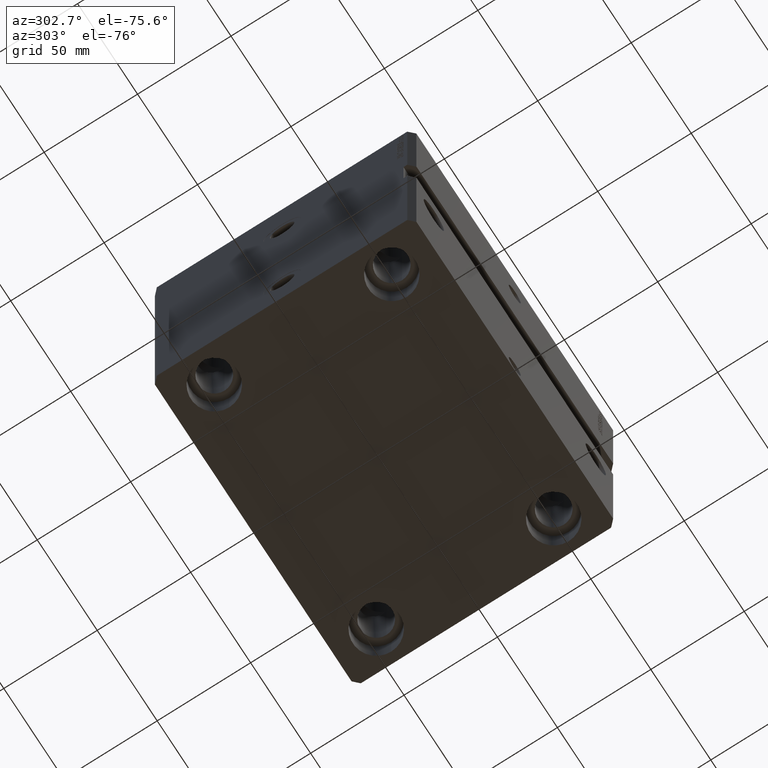
[diagram: clean part render]
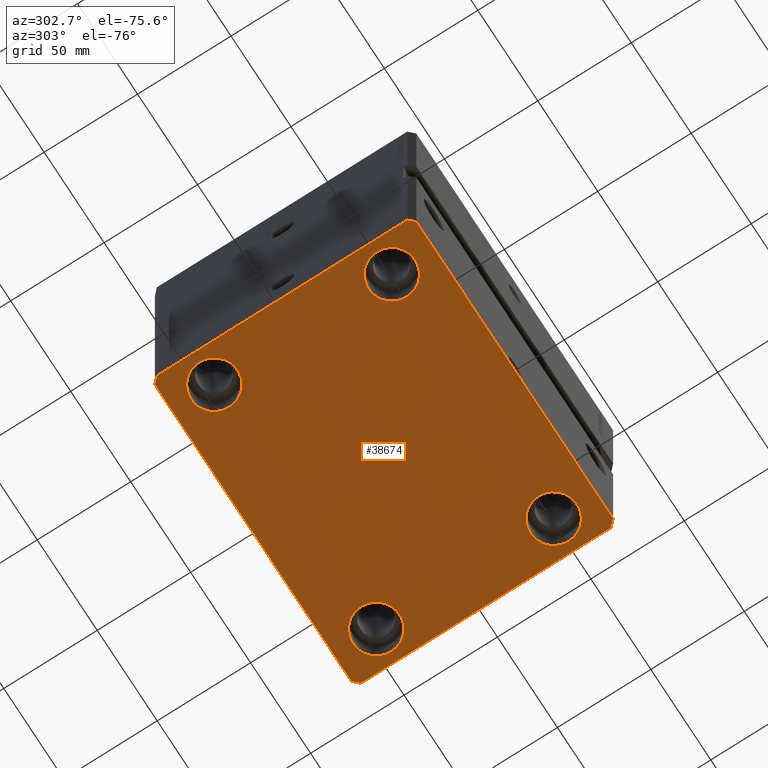
[diagram: same view with one face highlighted and labeled with its STEP entity id]
A machine part, auxiliary view. The second image highlights one B-rep face of the part: STEP entity #38674.
In plain terms, the highlighted planar face has unit normal (0, 0, 1).
Its self-contained STEP definition (entity closure, byte-faithful):
#246 = VECTOR ( 'NONE', #27806, 1000.000000000000000 ) ;
#385 = CIRCLE ( 'NONE', #35295, 12.49999999999999645 ) ;
#394 = CARTESIAN_POINT ( 'NONE',  ( -67.50000000000000000, 47.50000000000000000, -160.0000000000000000 ) ) ;
#943 = EDGE_CURVE ( 'NONE', #18308, #29926, #15015, .T. ) ;
#979 = VERTEX_POINT ( 'NONE', #38302 ) ;
#1150 = CIRCLE ( 'NONE', #8927, 12.49999999999999645 ) ;
#1205 = CARTESIAN_POINT ( 'NONE',  ( -80.00000000000000000, -47.50000000000000000, -160.0000000000000000 ) ) ;
#2194 = EDGE_LOOP ( 'NONE', ( #20334, #31273 ) ) ;
#2267 = CARTESIAN_POINT ( 'NONE',  ( -85.00000000000001421, -67.00000000000000000, -160.0000000000000000 ) ) ;
#2324 = DIRECTION ( 'NONE',  ( 1.000000000000000000, 0.000000000000000000, 0.000000000000000000 ) ) ;
#2544 = EDGE_CURVE ( 'NONE', #16374, #9183, #385, .T. ) ;
#2902 = FACE_BOUND ( 'NONE', #22493, .T. ) ;
#3362 = DIRECTION ( 'NONE',  ( 1.000000000000000000, 0.000000000000000000, -0.000000000000000000 ) ) ;
#3489 = DIRECTION ( 'NONE',  ( -0.000000000000000000, -0.000000000000000000, 1.000000000000000000 ) ) ;
#3632 = EDGE_CURVE ( 'NONE', #35018, #22713, #24463, .T. ) ;
#3652 = CIRCLE ( 'NONE', #26926, 12.49999999999999645 ) ;
#3842 = CARTESIAN_POINT ( 'NONE',  ( -82.00000000000001421, -70.00000000000000000, -160.0000000000000000 ) ) ;
#3967 = DIRECTION ( 'NONE',  ( -0.000000000000000000, -0.000000000000000000, 1.000000000000000000 ) ) ;
#4310 = AXIS2_PLACEMENT_3D ( 'NONE', #30315, #4597, #37115 ) ;
#4538 = AXIS2_PLACEMENT_3D ( 'NONE', #26287, #3489, #37200 ) ;
#4597 = DIRECTION ( 'NONE',  ( -0.000000000000000000, -0.000000000000000000, 1.000000000000000000 ) ) ;
#4905 = DIRECTION ( 'NONE',  ( -0.000000000000000000, -0.000000000000000000, 1.000000000000000000 ) ) ;
#5212 = AXIS2_PLACEMENT_3D ( 'NONE', #43899, #25217, #3362 ) ;
#5725 = VERTEX_POINT ( 'NONE', #17044 ) ;
#5949 = DIRECTION ( 'NONE',  ( -0.000000000000000000, -0.000000000000000000, 1.000000000000000000 ) ) ;
#7006 = FACE_BOUND ( 'NONE', #35686, .T. ) ;
#7360 = EDGE_LOOP ( 'NONE', ( #11812, #25662, #7840, #41425, #22714, #39188, #47073, #44970 ) ) ;
#7655 = CIRCLE ( 'NONE', #4538, 12.49999999999999645 ) ;
#7689 = LINE ( 'NONE', #26837, #18465 ) ;
#7840 = ORIENTED_EDGE ( 'NONE', *, *, #26844, .F. ) ;
#7972 = CARTESIAN_POINT ( 'NONE',  ( -85.00000000000001421, -67.00000000000000000, -160.0000000000000000 ) ) ;
#8836 = ORIENTED_EDGE ( 'NONE', *, *, #2544, .T. ) ;
#8927 = AXIS2_PLACEMENT_3D ( 'NONE', #41560, #4905, #44962 ) ;
#9092 = VERTEX_POINT ( 'NONE', #12427 ) ;
#9183 = VERTEX_POINT ( 'NONE', #20432 ) ;
#9509 = CARTESIAN_POINT ( 'NONE',  ( -55.00000000000000711, 47.50000000000000000, -160.0000000000000000 ) ) ;
#9643 = VECTOR ( 'NONE', #22781, 1000.000000000000000 ) ;
#10337 = DIRECTION ( 'NONE',  ( -0.7071067811865344721, 0.7071067811865606734, 0.000000000000000000 ) ) ;
#11073 = CARTESIAN_POINT ( 'NONE',  ( 82.00000000000059686, 70.00000000000002842, -160.0000000000000000 ) ) ;
#11125 = AXIS2_PLACEMENT_3D ( 'NONE', #38955, #5949, #26282 ) ;
#11587 = LINE ( 'NONE', #41192, #41134 ) ;
#11812 = ORIENTED_EDGE ( 'NONE', *, *, #30406, .F. ) ;
#12207 = VERTEX_POINT ( 'NONE', #14166 ) ;
#12427 = CARTESIAN_POINT ( 'NONE',  ( 55.00000000000000711, -47.50000000000000000, -160.0000000000000000 ) ) ;
#12558 = EDGE_CURVE ( 'NONE', #29926, #12207, #15057, .T. ) ;
#13010 = VECTOR ( 'NONE', #22578, 1000.000000000000000 ) ;
#13239 = CARTESIAN_POINT ( 'NONE',  ( 67.50000000000000000, 47.50000000000001421, -160.0000000000000000 ) ) ;
#13422 = VERTEX_POINT ( 'NONE', #19542 ) ;
#14069 = ORIENTED_EDGE ( 'NONE', *, *, #43867, .T. ) ;
#14166 = CARTESIAN_POINT ( 'NONE',  ( 85.00000000000001421, -66.99999999999998579, -160.0000000000000000 ) ) ;
#15015 = LINE ( 'NONE', #41231, #9643 ) ;
#15057 = LINE ( 'NONE', #18951, #13010 ) ;
#15112 = EDGE_CURVE ( 'NONE', #9183, #16374, #15387, .T. ) ;
#15230 = EDGE_CURVE ( 'NONE', #13422, #39537, #7689, .T. ) ;
#15387 = CIRCLE ( 'NONE', #34757, 12.49999999999999645 ) ;
#15516 = EDGE_CURVE ( 'NONE', #979, #37636, #17851, .T. ) ;
#16204 = VECTOR ( 'NONE', #30300, 1000.000000000000114 ) ;
#16262 = EDGE_LOOP ( 'NONE', ( #41820, #14069 ) ) ;
#16374 = VERTEX_POINT ( 'NONE', #9509 ) ;
#16503 = CIRCLE ( 'NONE', #22811, 12.49999999999999645 ) ;
#17044 = CARTESIAN_POINT ( 'NONE',  ( 80.00000000000000000, -47.50000000000000000, -160.0000000000000000 ) ) ;
#17318 = DIRECTION ( 'NONE',  ( -1.000000000000000000, -1.692413147294439807E-16, 0.000000000000000000 ) ) ;
#17851 = LINE ( 'NONE', #24900, #41796 ) ;
#18308 = VERTEX_POINT ( 'NONE', #3842 ) ;
#18465 = VECTOR ( 'NONE', #23210, 1000.000000000000000 ) ;
#18519 = CARTESIAN_POINT ( 'NONE',  ( -82.00000000000000000, 70.00000000000000000, -160.0000000000000000 ) ) ;
#18951 = CARTESIAN_POINT ( 'NONE',  ( 82.00000000000001421, -70.00000000000000000, -160.0000000000000000 ) ) ;
#19535 = ORIENTED_EDGE ( 'NONE', *, *, #39275, .T. ) ;
#19542 = CARTESIAN_POINT ( 'NONE',  ( -85.00000000000000000, 67.00000000000000000, -160.0000000000000000 ) ) ;
#19549 = CARTESIAN_POINT ( 'NONE',  ( 85.00000000000001421, -66.99999999999998579, -160.0000000000000000 ) ) ;
#20334 = ORIENTED_EDGE ( 'NONE', *, *, #27870, .T. ) ;
#20356 = DIRECTION ( 'NONE',  ( 1.000000000000000000, 0.000000000000000000, 0.000000000000000000 ) ) ;
#20432 = CARTESIAN_POINT ( 'NONE',  ( -80.00000000000000000, 47.50000000000000000, -160.0000000000000000 ) ) ;
#20819 = EDGE_CURVE ( 'NONE', #35691, #13422, #11587, .T. ) ;
#21569 = FACE_OUTER_BOUND ( 'NONE', #7360, .T. ) ;
#21796 = FACE_BOUND ( 'NONE', #16262, .T. ) ;
#22493 = EDGE_LOOP ( 'NONE', ( #38229, #8836 ) ) ;
#22578 = DIRECTION ( 'NONE',  ( 0.7071067811865459074, 0.7071067811865491270, 0.000000000000000000 ) ) ;
#22713 = VERTEX_POINT ( 'NONE', #44326 ) ;
#22714 = ORIENTED_EDGE ( 'NONE', *, *, #943, .F. ) ;
#22740 = DIRECTION ( 'NONE',  ( -0.7071067811865474617, -0.7071067811865474617, 0.000000000000000000 ) ) ;
#22781 = DIRECTION ( 'NONE',  ( 1.000000000000000000, 0.000000000000000000, 0.000000000000000000 ) ) ;
#22811 = AXIS2_PLACEMENT_3D ( 'NONE', #13239, #39688, #2324 ) ;
#23210 = DIRECTION ( 'NONE',  ( -1.035655806553317576E-16, -1.000000000000000000, 0.000000000000000000 ) ) ;
#24004 = CARTESIAN_POINT ( 'NONE',  ( -67.50000000000000000, 47.50000000000000000, -160.0000000000000000 ) ) ;
#24299 = CARTESIAN_POINT ( 'NONE',  ( 80.00000000000000000, 47.50000000000001421, -160.0000000000000000 ) ) ;
#24463 = CIRCLE ( 'NONE', #4310, 12.49999999999999645 ) ;
#24900 = CARTESIAN_POINT ( 'NONE',  ( 85.00000000000055422, 66.99999999999997158, -160.0000000000000000 ) ) ;
#25217 = DIRECTION ( 'NONE',  ( 0.000000000000000000, 0.000000000000000000, 1.000000000000000000 ) ) ;
#25662 = ORIENTED_EDGE ( 'NONE', *, *, #15516, .F. ) ;
#25972 = EDGE_CURVE ( 'NONE', #38286, #27435, #16503, .T. ) ;
#26282 = DIRECTION ( 'NONE',  ( 1.000000000000000000, 0.000000000000000000, 0.000000000000000000 ) ) ;
#26287 = CARTESIAN_POINT ( 'NONE',  ( -67.50000000000000000, -47.50000000000000000, -160.0000000000000000 ) ) ;
#26837 = CARTESIAN_POINT ( 'NONE',  ( -85.00000000000000000, 67.00000000000000000, -160.0000000000000000 ) ) ;
#26844 = EDGE_CURVE ( 'NONE', #12207, #979, #28044, .T. ) ;
#26926 = AXIS2_PLACEMENT_3D ( 'NONE', #36723, #3967, #47867 ) ;
#27379 = LINE ( 'NONE', #7972, #16204 ) ;
#27435 = VERTEX_POINT ( 'NONE', #47452 ) ;
#27806 = DIRECTION ( 'NONE',  ( 3.935492064902608811E-15, 1.000000000000000000, 0.000000000000000000 ) ) ;
#27870 = EDGE_CURVE ( 'NONE', #27435, #38286, #32079, .T. ) ;
#28044 = LINE ( 'NONE', #19549, #246 ) ;
#28097 = ORIENTED_EDGE ( 'NONE', *, *, #34637, .T. ) ;
#28934 = CARTESIAN_POINT ( 'NONE',  ( 82.00000000000059686, 70.00000000000002842, -160.0000000000000000 ) ) ;
#29082 = FACE_BOUND ( 'NONE', #2194, .T. ) ;
#29926 = VERTEX_POINT ( 'NONE', #34074 ) ;
#30300 = DIRECTION ( 'NONE',  ( 0.7071067811865474617, -0.7071067811865474617, 0.000000000000000000 ) ) ;
#30315 = CARTESIAN_POINT ( 'NONE',  ( -67.50000000000000000, -47.50000000000000000, -160.0000000000000000 ) ) ;
#30406 = EDGE_CURVE ( 'NONE', #37636, #35691, #47371, .T. ) ;
#31273 = ORIENTED_EDGE ( 'NONE', *, *, #25972, .T. ) ;
#32079 = CIRCLE ( 'NONE', #11125, 12.49999999999999645 ) ;
#33165 = DIRECTION ( 'NONE',  ( 1.000000000000000000, 0.000000000000000000, 0.000000000000000000 ) ) ;
#34074 = CARTESIAN_POINT ( 'NONE',  ( 82.00000000000001421, -70.00000000000000000, -160.0000000000000000 ) ) ;
#34637 = EDGE_CURVE ( 'NONE', #9092, #5725, #1150, .T. ) ;
#34757 = AXIS2_PLACEMENT_3D ( 'NONE', #24004, #38800, #20356 ) ;
#35018 = VERTEX_POINT ( 'NONE', #1205 ) ;
#35108 = VECTOR ( 'NONE', #17318, 1000.000000000000000 ) ;
#35295 = AXIS2_PLACEMENT_3D ( 'NONE', #394, #44328, #33165 ) ;
#35686 = EDGE_LOOP ( 'NONE', ( #28097, #19535 ) ) ;
#35691 = VERTEX_POINT ( 'NONE', #18519 ) ;
#36723 = CARTESIAN_POINT ( 'NONE',  ( 67.50000000000000000, -47.50000000000000000, -160.0000000000000000 ) ) ;
#37115 = DIRECTION ( 'NONE',  ( 1.000000000000000000, 0.000000000000000000, 0.000000000000000000 ) ) ;
#37200 = DIRECTION ( 'NONE',  ( 1.000000000000000000, 0.000000000000000000, 0.000000000000000000 ) ) ;
#37636 = VERTEX_POINT ( 'NONE', #11073 ) ;
#38229 = ORIENTED_EDGE ( 'NONE', *, *, #15112, .T. ) ;
#38286 = VERTEX_POINT ( 'NONE', #24299 ) ;
#38302 = CARTESIAN_POINT ( 'NONE',  ( 85.00000000000055422, 66.99999999999997158, -160.0000000000000000 ) ) ;
#38674 = ADVANCED_FACE ( 'NONE', ( #21796, #7006, #29082, #2902, #21569 ), #46836, .F. ) ;
#38800 = DIRECTION ( 'NONE',  ( -0.000000000000000000, -0.000000000000000000, 1.000000000000000000 ) ) ;
#38955 = CARTESIAN_POINT ( 'NONE',  ( 67.50000000000000000, 47.50000000000001421, -160.0000000000000000 ) ) ;
#39188 = ORIENTED_EDGE ( 'NONE', *, *, #45255, .F. ) ;
#39275 = EDGE_CURVE ( 'NONE', #5725, #9092, #3652, .T. ) ;
#39537 = VERTEX_POINT ( 'NONE', #2267 ) ;
#39688 = DIRECTION ( 'NONE',  ( -0.000000000000000000, -0.000000000000000000, 1.000000000000000000 ) ) ;
#41134 = VECTOR ( 'NONE', #22740, 1000.000000000000114 ) ;
#41192 = CARTESIAN_POINT ( 'NONE',  ( -82.00000000000000000, 70.00000000000000000, -160.0000000000000000 ) ) ;
#41231 = CARTESIAN_POINT ( 'NONE',  ( -82.00000000000001421, -70.00000000000000000, -160.0000000000000000 ) ) ;
#41425 = ORIENTED_EDGE ( 'NONE', *, *, #12558, .F. ) ;
#41560 = CARTESIAN_POINT ( 'NONE',  ( 67.50000000000000000, -47.50000000000000000, -160.0000000000000000 ) ) ;
#41796 = VECTOR ( 'NONE', #10337, 1000.000000000000000 ) ;
#41820 = ORIENTED_EDGE ( 'NONE', *, *, #3632, .T. ) ;
#43867 = EDGE_CURVE ( 'NONE', #22713, #35018, #7655, .T. ) ;
#43899 = CARTESIAN_POINT ( 'NONE',  ( 0.000000000000000000, 0.000000000000000000, -160.0000000000000000 ) ) ;
#44326 = CARTESIAN_POINT ( 'NONE',  ( -55.00000000000000711, -47.50000000000000000, -160.0000000000000000 ) ) ;
#44328 = DIRECTION ( 'NONE',  ( -0.000000000000000000, -0.000000000000000000, 1.000000000000000000 ) ) ;
#44962 = DIRECTION ( 'NONE',  ( 1.000000000000000000, 0.000000000000000000, 0.000000000000000000 ) ) ;
#44970 = ORIENTED_EDGE ( 'NONE', *, *, #20819, .F. ) ;
#45255 = EDGE_CURVE ( 'NONE', #39537, #18308, #27379, .T. ) ;
#46836 = PLANE ( 'NONE',  #5212 ) ;
#47073 = ORIENTED_EDGE ( 'NONE', *, *, #15230, .F. ) ;
#47371 = LINE ( 'NONE', #28934, #35108 ) ;
#47452 = CARTESIAN_POINT ( 'NONE',  ( 55.00000000000000711, 47.50000000000001421, -160.0000000000000000 ) ) ;
#47867 = DIRECTION ( 'NONE',  ( 1.000000000000000000, 0.000000000000000000, 0.000000000000000000 ) ) ;